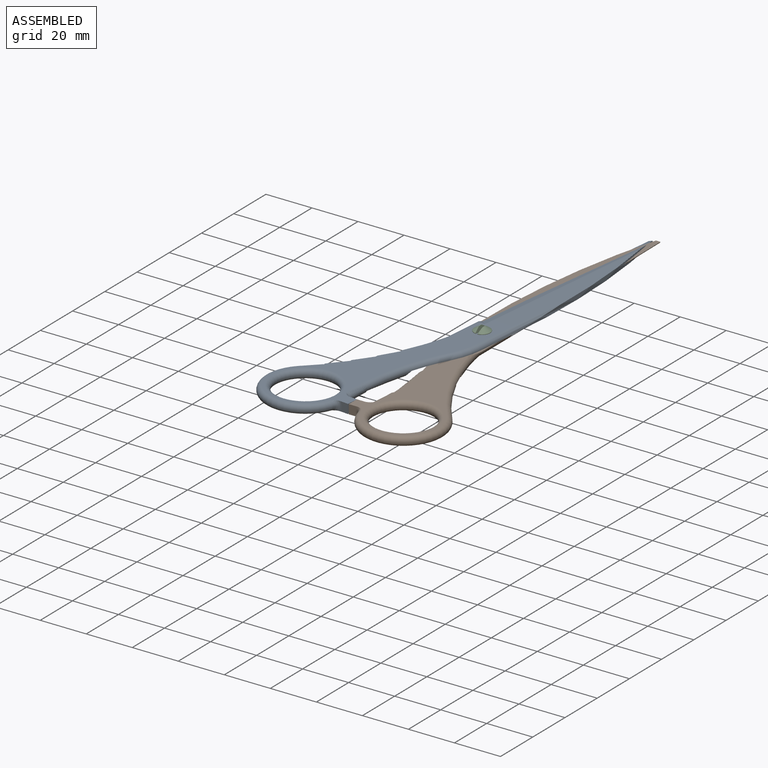
[diagram: assembled view]
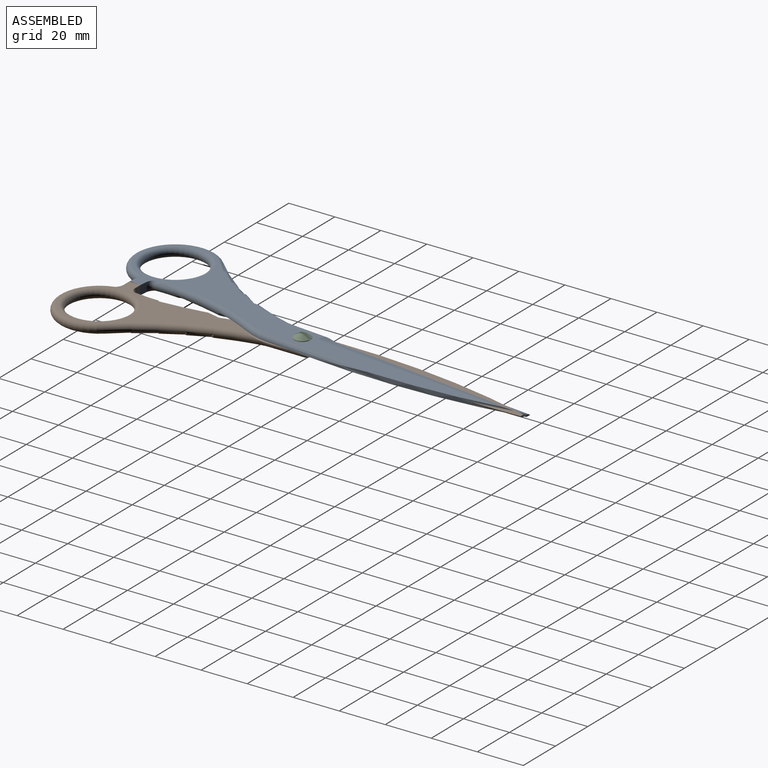
[diagram: assembled view, second angle]
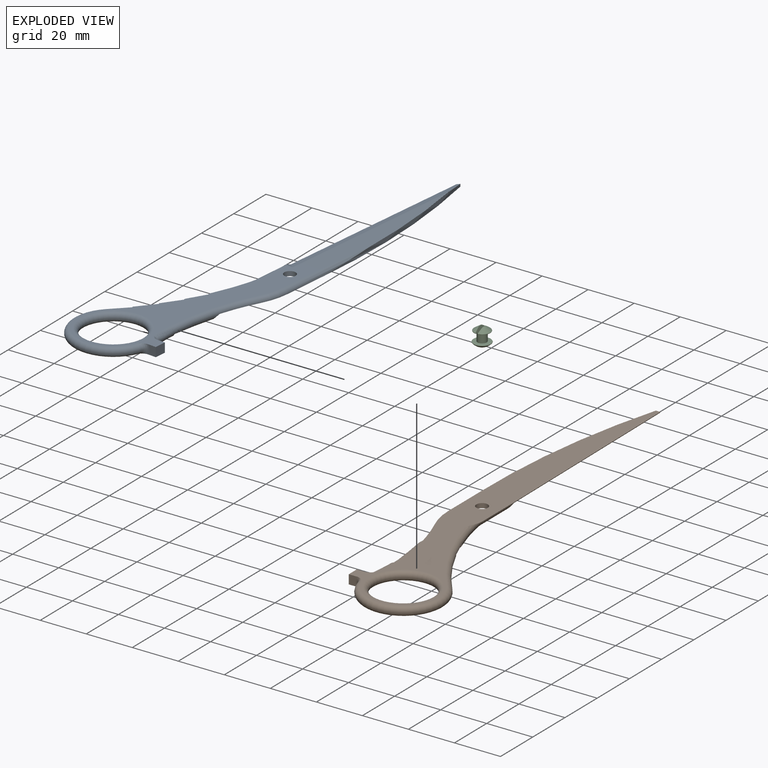
[diagram: exploded view]
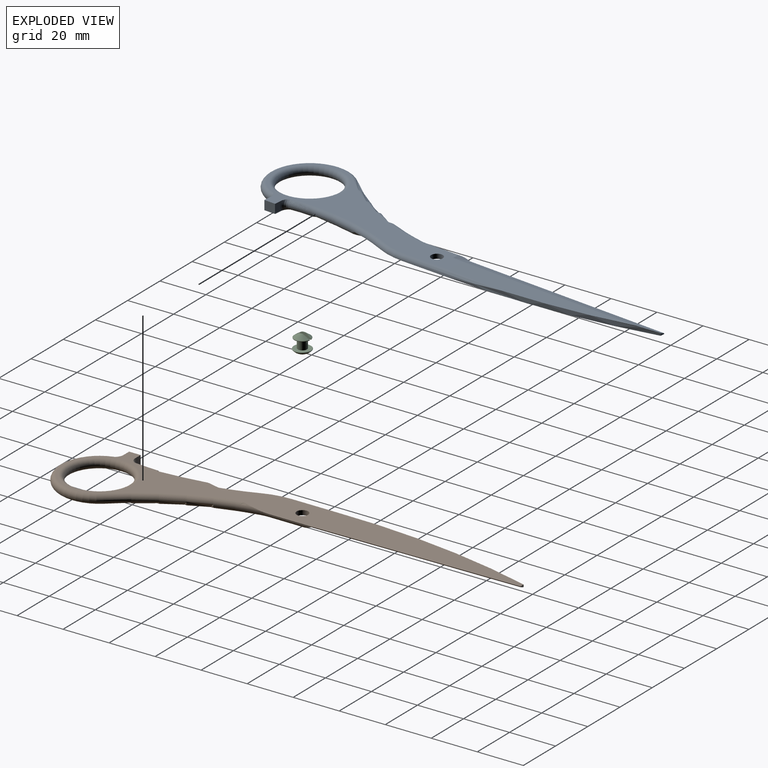
[diagram: exploded view, second angle]
ASSEMBLY  parts=3 mates=5
PART A: 26 faces, bbox 46.4x195.1x8.9 mm
  f0: plane 95.03x4.42mm, normal (0.34,0.01,-0.94), area 422.4mm2, adj f4,f8,f9,f11,f12,f13
  f1: plane 70.41x38.36mm, normal (0,0,1), area 616.3mm2, adj f2,f3,f6,f7,f14,f15,f18,f21
  f2: plane 4.01x3.47mm, normal (0,1,0), area 12.4mm2, adj f1,f4,f23,f25
  f3: plane 4.01x3.58mm, normal (0,-1,0), area 12.8mm2, adj f1,f4,f23,f24
  f4: plane 101.62x40.36mm, normal (0,0,-1), area 1012.3mm2, adj f0,f2,f3,f8,f13,f14,f15,f16
  f5: plane 48.49x15mm, normal (0,0,1), area 517.3mm2, adj f6,f7,f10,f17,f18,f19,f20,f22
  f6: cone r=96.95mm half-angle=45deg, axis (0,0,-1), area 51.9mm2, adj f1,f5,f7,f18
  f7: cone r=33.52mm half-angle=45deg, axis (0,0,1), area 18.8mm2, adj f1,f5,f6,f15,f16
  f8: plane 80.56x9.3mm, normal (0,0.01,-1), area 532.5mm2, adj f0,f4,f12,f20
  f9: plane 2x1.04mm, normal (0,1,0.01), area 1.3mm2, adj f0,f10,f11,f12
  f10: plane 89.98x15mm, normal (0,-0.01,1), area 963.1mm2, adj f5,f9,f11,f12
  f11: plane 91.11x1.2mm, normal (0.87,0,-0.5), area 41.9mm2, adj f0,f9,f10,f13,f17
  f12: cylinder r=317.92mm len=90mm, axis (0,-0.01,1), area 151.6mm2, adj f0,f8,f9,f10,f20
  f13: plane 4.89x4.51mm, normal (0,0.38,-0.93), area 7.8mm2, adj f0,f4,f11,f17
  f14: torus R=15.5mm, axis (0,0,1), area 376.9mm2, adj f1,f4,f15,f24
  f15: torus R=113.32mm, axis (0,0,1), area 349.6mm2, adj f1,f4,f7,f14,f16
  f16: torus R=18.52mm, axis (0,0,1), area 10.7mm2, adj f4,f7,f15,f17
  f17: cylinder r=2mm len=20mm, axis (0,1,0), area 52.7mm2, adj f4,f5,f11,f13,f16
  f18: torus R=98.95mm, axis (0,0,1), area 255.4mm2, adj f1,f4,f5,f6,f19,f25
  f19: torus R=29.52mm, axis (0,0,1), area 37.8mm2, adj f4,f5,f18,f20
  f20: cylinder r=2mm len=46.11mm, axis (0,-1,0), area 99.7mm2, adj f4,f5,f8,f12,f19
  f21: torus R=14.5mm, axis (0,0,1), area 522.2mm2, adj f1,f4
  f22: cylinder r=2.5mm len=5mm, axis (0,0,-1), area 31.4mm2, adj f4,f5
  f23: plane 5x4mm, normal (-1,0,0), area 20mm2, adj f1,f2,f3,f4
  f24: bspline ~8.01x4.61mm, area 15.6mm2, adj f1,f3,f4,f14
  f25: bspline ~8.01x4.76mm, area 16.1mm2, adj f1,f2,f4,f18
PART B: same geometry as A
PART C: 14 faces, bbox 8.2x8.2x8 mm
  f0: cylinder r=2mm len=4mm, axis (0,0,1), area 48.7mm2, adj f1,f2,f7,f9,f10
  f1: plane 6.67x2.97mm, normal (0,0,-1), area 10.3mm2, adj f0,f9,f13
  f2: plane 6.67x2.97mm, normal (0,0,-1), area 10.3mm2, adj f0,f10,f11
  f3: cone r=1.09mm half-angle=55.5deg, axis (0,0,-1), area 17mm2, adj f8,f9,f13
  f4: cone r=1.09mm half-angle=55.5deg, axis (0,0,-1), area 17mm2, adj f5,f10,f11
  f5: plane 1.53x0.31mm, normal (0,0,1), area 0.3mm2, adj f4,f10
  f6: sphere r=5mm, area 52.4mm2, adj f12
  f7: plane 7.16x7.16mm, normal (0,0,1), area 27.6mm2, adj f0,f12
  f8: plane 1.53x0.31mm, normal (0,0,1), area 0.3mm2, adj f3,f9
  f9: plane 7.07x4.01mm, normal (0.98,0,0.19), area 17.9mm2, adj f0,f1,f3,f8,f10,f13
  f10: plane 7.07x4.01mm, normal (-0.98,0,0.19), area 17.9mm2, adj f0,f2,f4,f5,f9,f11
  f11: torus R=3.36mm, axis (0,0,1), area 5.2mm2, adj f2,f4,f10
  f12: torus R=3.58mm, axis (0,0,1), area 10.8mm2, adj f6,f7
  f13: torus R=3.36mm, axis (0,0,1), area 5.2mm2, adj f1,f3,f9
PLACE A rot(axis=(0.05,1,0),180deg) t=(0,0,4)mm
PLACE B rot(axis=(0,1,0),0deg) t=(0,0,0)mm
PLACE C rot(axis=(-0.58,-0.82,-0.03),0deg) t=(0,0,2)mm
MATE cylindrical A.f22 <-> B.f22  axis (0,0,1) through (0,0,4)mm
MATE planar C.f12 <-> B.f4  axis (0,0,1) through (0,0,0)mm
MATE planar C.f1 <-> A.f4  axis (0,0,-1) through (-1.9,0,4)mm
MATE planar B.f1 <-> A.f4  axis (0,0,1) through (11.28,-53.69,4)mm
MATE cylindrical A.f22 <-> C.f3  axis (0,0,1) through (0,0,3)mm
